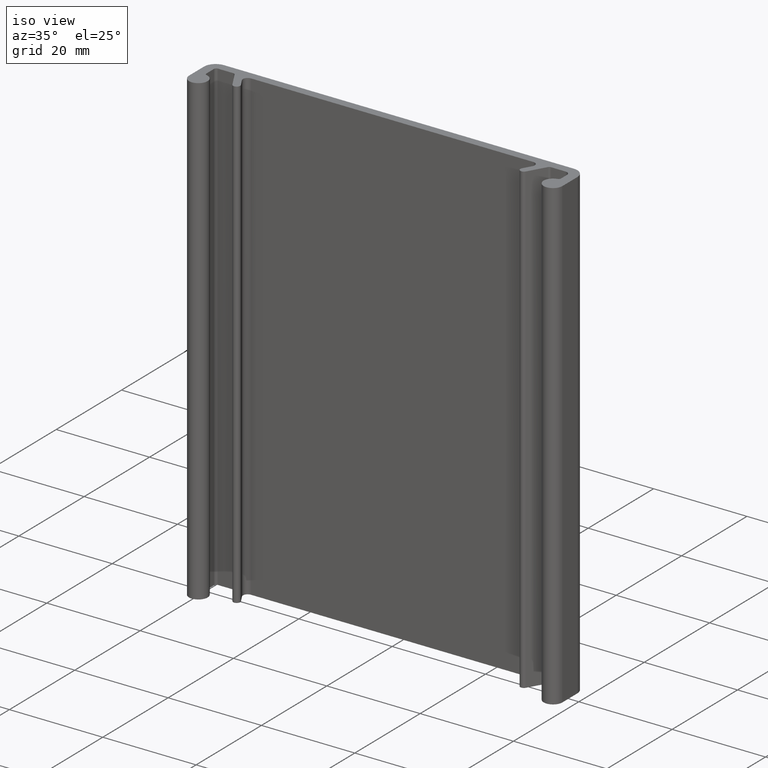
[diagram: clean part render]
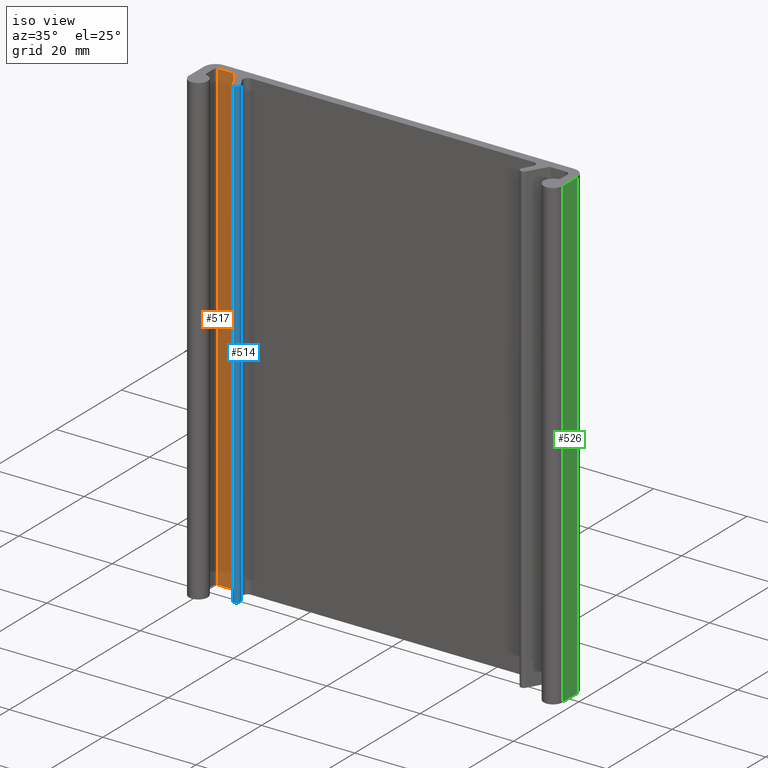
[diagram: same view with three faces highlighted in distinct colors, each labeled with its STEP entity id]
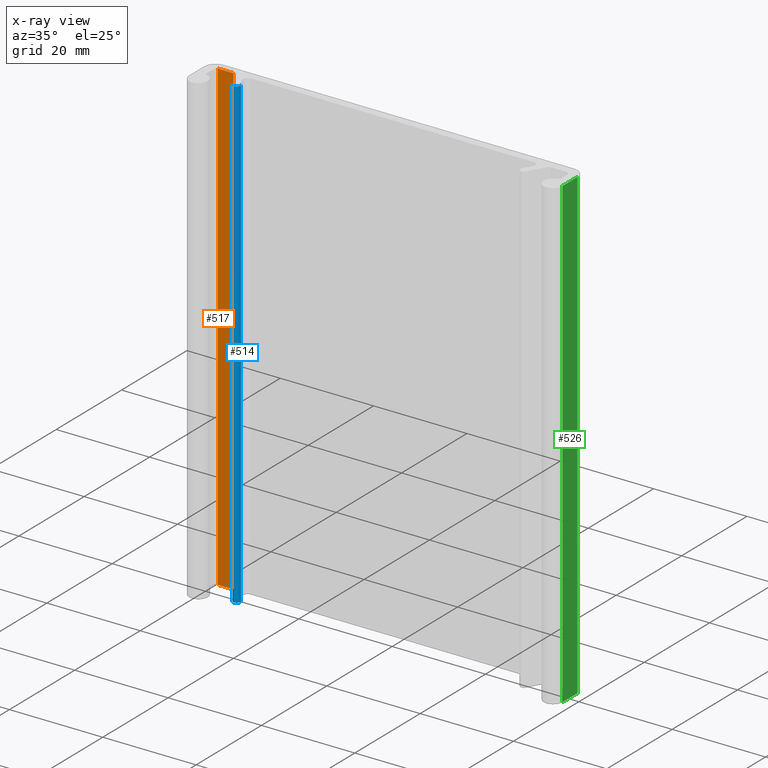
[diagram: x-ray of the same camera — body ghosted, the three highlighted faces saturated]
A machine part, iso view with three faces highlighted in distinct colors.
The next image is the same camera in x-ray (body ghosted, the three faces saturated) — at least one of them is partly hidden behind the body in this view.
Their STEP definitions:

[orange] entity #517 — the highlighted planar face has unit normal (0, -1, 0).
#61=FACE_OUTER_BOUND('',#89,.T.);
#89=EDGE_LOOP('',(#359,#360,#361,#362));
#121=LINE('',#811,#171);
#122=LINE('',#814,#172);
#123=LINE('',#816,#173);
#124=LINE('',#817,#174);
#171=VECTOR('',#646,10.);
#172=VECTOR('',#649,10.);
#173=VECTOR('',#650,10.);
#174=VECTOR('',#651,10.);
#221=VERTEX_POINT('',#807);
#222=VERTEX_POINT('',#809);
#223=VERTEX_POINT('',#813);
#224=VERTEX_POINT('',#815);
#277=EDGE_CURVE('',#221,#222,#121,.T.);
#278=EDGE_CURVE('',#223,#221,#122,.T.);
#279=EDGE_CURVE('',#224,#222,#123,.T.);
#280=EDGE_CURVE('',#223,#224,#124,.T.);
#359=ORIENTED_EDGE('',*,*,#278,.T.);
#360=ORIENTED_EDGE('',*,*,#277,.T.);
#361=ORIENTED_EDGE('',*,*,#279,.F.);
#362=ORIENTED_EDGE('',*,*,#280,.F.);
#501=PLANE('',#572);
#517=ADVANCED_FACE('',(#61),#501,.T.);
#572=AXIS2_PLACEMENT_3D('',#812,#647,#648);
#646=DIRECTION('',(0.,0.,1.));
#647=DIRECTION('center_axis',(1.02097647993178E-13,-1.,0.));
#648=DIRECTION('ref_axis',(1.,1.02097647993178E-13,0.));
#649=DIRECTION('',(1.,1.02097647993178E-13,0.));
#650=DIRECTION('',(1.,1.02097647993178E-13,0.));
#651=DIRECTION('',(0.,0.,1.));
#807=CARTESIAN_POINT('',(-34.0216149646051,-2.1316282072803E-13,0.));
#809=CARTESIAN_POINT('',(-34.0216149646051,-2.1316282072803E-13,100.));
#811=CARTESIAN_POINT('',(-34.0216149646051,-2.1316282072803E-13,0.));
#812=CARTESIAN_POINT('Origin',(-37.3273502691892,-5.50670620214078E-13,
0.));
#813=CARTESIAN_POINT('',(-37.3273502691892,-5.50670620214078E-13,0.));
#814=CARTESIAN_POINT('',(-37.3273502691892,-5.50670620214078E-13,0.));
#815=CARTESIAN_POINT('',(-37.3273502691892,-5.50670620214078E-13,100.));
#816=CARTESIAN_POINT('',(-37.3273502691892,-5.50670620214078E-13,100.));
#817=CARTESIAN_POINT('',(-37.3273502691892,-5.50670620214078E-13,0.));

[blue] entity #514 — the highlighted cylindrical surface (edge-blend (fillet) strip) has radius 0.75 mm, axis along (0, 0, 1).
#15=CIRCLE('',#566,0.750000000000084);
#16=CIRCLE('',#567,0.750000000000084);
#43=CYLINDRICAL_SURFACE('',#565,0.750000000000084);
#58=FACE_OUTER_BOUND('',#86,.T.);
#86=EDGE_LOOP('',(#347,#348,#349,#350));
#116=LINE('',#793,#166);
#117=LINE('',#799,#167);
#166=VECTOR('',#627,10.);
#167=VECTOR('',#634,10.);
#213=VERTEX_POINT('',#786);
#216=VERTEX_POINT('',#791);
#217=VERTEX_POINT('',#795);
#218=VERTEX_POINT('',#797);
#268=EDGE_CURVE('',#213,#216,#116,.T.);
#269=EDGE_CURVE('',#217,#213,#15,.T.);
#270=EDGE_CURVE('',#218,#216,#16,.T.);
#271=EDGE_CURVE('',#217,#218,#117,.T.);
#347=ORIENTED_EDGE('',*,*,#269,.T.);
#348=ORIENTED_EDGE('',*,*,#268,.T.);
#349=ORIENTED_EDGE('',*,*,#270,.F.);
#350=ORIENTED_EDGE('',*,*,#271,.F.);
#514=ADVANCED_FACE('',(#58),#43,.T.);
#565=AXIS2_PLACEMENT_3D('',#794,#628,#629);
#566=AXIS2_PLACEMENT_3D('',#796,#630,#631);
#567=AXIS2_PLACEMENT_3D('',#798,#632,#633);
#627=DIRECTION('',(0.,0.,1.));
#628=DIRECTION('center_axis',(0.,0.,1.));
#629=DIRECTION('ref_axis',(-0.866025403784456,-0.49999999999997,0.));
#630=DIRECTION('center_axis',(0.,0.,1.));
#631=DIRECTION('ref_axis',(-0.866025403784456,-0.49999999999997,0.));
#632=DIRECTION('center_axis',(0.,0.,1.));
#633=DIRECTION('ref_axis',(-0.866025403784456,-0.49999999999997,0.));
#634=DIRECTION('',(0.,0.,1.));
#786=CARTESIAN_POINT('',(-30.1245006475746,-3.2500000000006,0.));
#791=CARTESIAN_POINT('',(-30.1245006475746,-3.2500000000006,100.));
#793=CARTESIAN_POINT('',(-30.1245006475746,-3.2500000000006,0.));
#794=CARTESIAN_POINT('Origin',(-30.774019700413,-3.62500000000065,0.));
#795=CARTESIAN_POINT('',(-31.4235387532515,-4.0000000000007,0.));
#796=CARTESIAN_POINT('Origin',(-30.774019700413,-3.62500000000065,0.));
#797=CARTESIAN_POINT('',(-31.4235387532515,-4.0000000000007,100.));
#798=CARTESIAN_POINT('Origin',(-30.774019700413,-3.62500000000065,100.));
#799=CARTESIAN_POINT('',(-31.4235387532515,-4.0000000000007,0.));

[green] entity #526 — the highlighted planar face has unit normal (1, -0, 0).
#70=FACE_OUTER_BOUND('',#98,.T.);
#98=EDGE_LOOP('',(#395,#396,#397,#398));
#138=LINE('',#865,#188);
#139=LINE('',#868,#189);
#140=LINE('',#870,#190);
#141=LINE('',#871,#191);
#188=VECTOR('',#701,10.);
#189=VECTOR('',#704,10.);
#190=VECTOR('',#705,10.);
#191=VECTOR('',#706,10.);
#239=VERTEX_POINT('',#861);
#240=VERTEX_POINT('',#863);
#241=VERTEX_POINT('',#867);
#242=VERTEX_POINT('',#869);
#304=EDGE_CURVE('',#239,#240,#138,.T.);
#305=EDGE_CURVE('',#241,#239,#139,.T.);
#306=EDGE_CURVE('',#242,#240,#140,.T.);
#307=EDGE_CURVE('',#241,#242,#141,.T.);
#395=ORIENTED_EDGE('',*,*,#305,.T.);
#396=ORIENTED_EDGE('',*,*,#304,.T.);
#397=ORIENTED_EDGE('',*,*,#306,.F.);
#398=ORIENTED_EDGE('',*,*,#307,.F.);
#505=PLANE('',#591);
#526=ADVANCED_FACE('',(#70),#505,.T.);
#591=AXIS2_PLACEMENT_3D('',#866,#702,#703);
#701=DIRECTION('',(0.,0.,1.));
#702=DIRECTION('center_axis',(1.,-9.30024801015428E-14,0.));
#703=DIRECTION('ref_axis',(9.30024801015428E-14,1.,0.));
#704=DIRECTION('',(9.30024801015428E-14,1.,0.));
#705=DIRECTION('',(9.30024801015428E-14,1.,0.));
#706=DIRECTION('',(0.,0.,1.));
#861=CARTESIAN_POINT('',(40.1726497308103,-0.700000000027883,0.));
#863=CARTESIAN_POINT('',(40.1726497308103,-0.700000000027883,100.));
#865=CARTESIAN_POINT('',(40.1726497308103,-0.700000000027883,0.));
#866=CARTESIAN_POINT('Origin',(40.1726497308099,-5.28402443669436,0.));
#867=CARTESIAN_POINT('',(40.1726497308099,-5.28402443669436,0.));
#868=CARTESIAN_POINT('',(40.1726497308099,-5.28402443669436,0.));
#869=CARTESIAN_POINT('',(40.1726497308099,-5.28402443669436,100.));
#870=CARTESIAN_POINT('',(40.1726497308099,-5.28402443669436,100.));
#871=CARTESIAN_POINT('',(40.1726497308099,-5.28402443669436,0.));